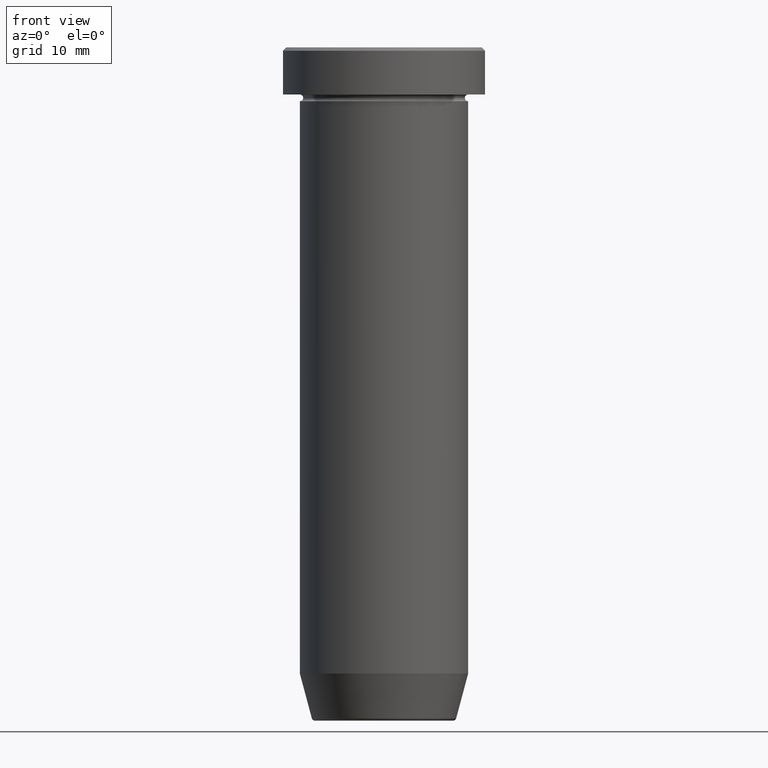
[diagram: clean part render]
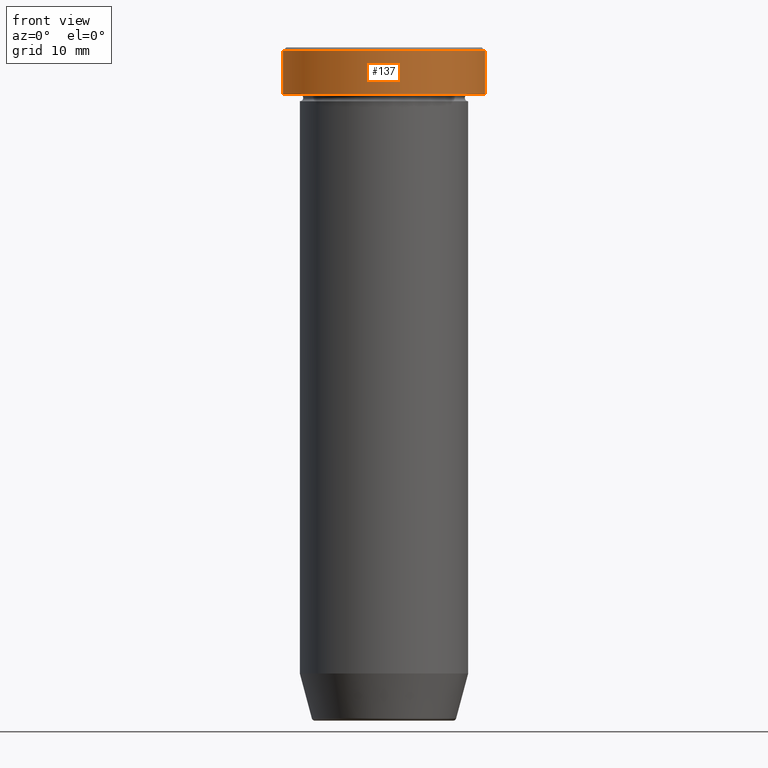
[diagram: same view with one face highlighted and labeled with its STEP entity id]
A machine part, front view. The second image highlights one B-rep face of the part: STEP entity #137.
In plain terms, the highlighted cylindrical surface (partial cylindrical patch) has radius 15 mm, axis along (-0, -0, 1).
Its self-contained STEP definition (entity closure, byte-faithful):
#30 = FACE_OUTER_BOUND ( 'NONE', #160, .T. ) ;
#44 = ORIENTED_EDGE ( 'NONE', *, *, #337, .T. ) ;
#45 = VECTOR ( 'NONE', #429, 1000.000000000000000 ) ;
#47 = EDGE_CURVE ( 'NONE', #274, #60, #146, .T. ) ;
#60 = VERTEX_POINT ( 'NONE', #412 ) ;
#85 = CARTESIAN_POINT ( 'NONE',  ( -15.00000000000000000, 1.836970198721029589E-15, -6.999999999999999112 ) ) ;
#98 = LINE ( 'NONE', #154, #45 ) ;
#108 = CARTESIAN_POINT ( 'NONE',  ( 0.000000000000000000, 0.000000000000000000, -6.999999999999999112 ) ) ;
#119 = DIRECTION ( 'NONE',  ( -0.000000000000000000, -0.000000000000000000, 1.000000000000000000 ) ) ;
#126 = ORIENTED_EDGE ( 'NONE', *, *, #455, .T. ) ;
#137 = ADVANCED_FACE ( 'NONE', ( #30 ), #538, .T. ) ;
#145 = ORIENTED_EDGE ( 'NONE', *, *, #47, .T. ) ;
#146 = CIRCLE ( 'NONE', #308, 15.00000000000000000 ) ;
#154 = CARTESIAN_POINT ( 'NONE',  ( -15.00000000000000000, 1.836970198721029589E-15, 0.000000000000000000 ) ) ;
#160 = EDGE_LOOP ( 'NONE', ( #229, #145, #126, #44 ) ) ;
#170 = DIRECTION ( 'NONE',  ( -0.000000000000000000, -0.000000000000000000, 1.000000000000000000 ) ) ;
#186 = CIRCLE ( 'NONE', #341, 15.00000000000000000 ) ;
#208 = VERTEX_POINT ( 'NONE', #410 ) ;
#229 = ORIENTED_EDGE ( 'NONE', *, *, #319, .F. ) ;
#264 = CARTESIAN_POINT ( 'NONE',  ( 15.00000000000000000, 0.000000000000000000, 0.000000000000000000 ) ) ;
#274 = VERTEX_POINT ( 'NONE', #85 ) ;
#282 = CARTESIAN_POINT ( 'NONE',  ( 0.000000000000000000, 0.000000000000000000, -0.5000000000000038858 ) ) ;
#295 = DIRECTION ( 'NONE',  ( -0.000000000000000000, -0.000000000000000000, 1.000000000000000000 ) ) ;
#306 = LINE ( 'NONE', #264, #570 ) ;
#308 = AXIS2_PLACEMENT_3D ( 'NONE', #108, #295, #484 ) ;
#319 = EDGE_CURVE ( 'NONE', #274, #436, #98, .T. ) ;
#337 = EDGE_CURVE ( 'NONE', #208, #436, #186, .T. ) ;
#341 = AXIS2_PLACEMENT_3D ( 'NONE', #282, #393, #518 ) ;
#352 = CARTESIAN_POINT ( 'NONE',  ( 0.000000000000000000, 0.000000000000000000, 0.000000000000000000 ) ) ;
#370 = AXIS2_PLACEMENT_3D ( 'NONE', #352, #170, #402 ) ;
#393 = DIRECTION ( 'NONE',  ( 0.000000000000000000, 0.000000000000000000, -1.000000000000000000 ) ) ;
#402 = DIRECTION ( 'NONE',  ( 1.000000000000000000, 0.000000000000000000, 0.000000000000000000 ) ) ;
#410 = CARTESIAN_POINT ( 'NONE',  ( 15.00000000000000000, 0.000000000000000000, -0.5000000000000038858 ) ) ;
#412 = CARTESIAN_POINT ( 'NONE',  ( 15.00000000000000000, 0.000000000000000000, -6.999999999999999112 ) ) ;
#429 = DIRECTION ( 'NONE',  ( -0.000000000000000000, -0.000000000000000000, 1.000000000000000000 ) ) ;
#436 = VERTEX_POINT ( 'NONE', #448 ) ;
#448 = CARTESIAN_POINT ( 'NONE',  ( -15.00000000000000000, 1.836970198721029589E-15, -0.5000000000000038858 ) ) ;
#455 = EDGE_CURVE ( 'NONE', #60, #208, #306, .T. ) ;
#484 = DIRECTION ( 'NONE',  ( 1.000000000000000000, 0.000000000000000000, 0.000000000000000000 ) ) ;
#518 = DIRECTION ( 'NONE',  ( 1.000000000000000000, 0.000000000000000000, 0.000000000000000000 ) ) ;
#538 = CYLINDRICAL_SURFACE ( 'NONE', #370, 15.00000000000000000 ) ;
#570 = VECTOR ( 'NONE', #119, 1000.000000000000000 ) ;